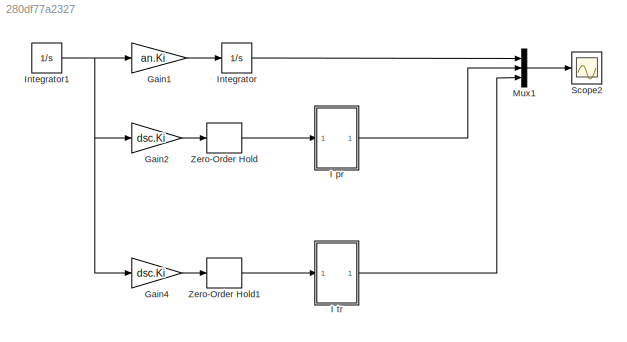
MODEL slx_280df77a2327
KIND model
CONFIG AbsTol = auto
CONFIG EnableMultiTasking = off
CONFIG FixedStep = To/100
CONFIG MaxStep = auto
CONFIG MinStep = auto
CONFIG RelTol = 1e-3
CONFIG SampleTimeConstraint = Unconstrained
CONFIG SolverName = FixedStepAuto
CONFIG StartTime = 0.0
CONFIG StopTime = Tmdl
BLOCK [Gain] Gain1
  Gain = an.Ki
BLOCK [Gain] Gain2
  Gain = dsc.Ki
BLOCK [Gain] Gain4
  Gain = dsc.Ki
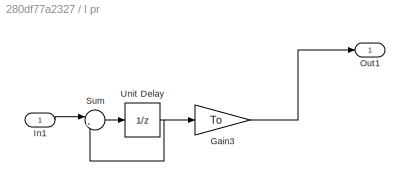
BLOCK [SubSystem] I pr
  Ports = [1, 1]
  RequestExecContextInheritance = off
BLOCK [Gain] I pr/Gain3
  Gain = To
BLOCK [Inport] I pr/In1
BLOCK [Outport] I pr/Out1
BLOCK [Sum] I pr/Sum
  Inputs = |++
  Ports = [2, 1]
BLOCK [UnitDelay] I pr/Unit Delay
  HasFrameUpgradeWarning = on
  SampleTime = -1
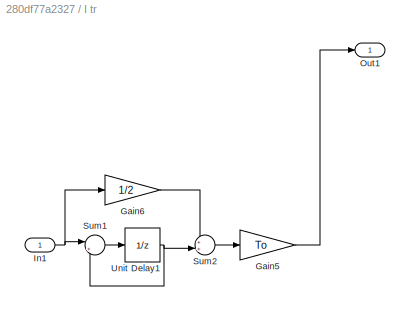
BLOCK [SubSystem] I tr
  Ports = [1, 1]
  RequestExecContextInheritance = off
BLOCK [Gain] I tr/Gain5
  Gain = To
BLOCK [Gain] I tr/Gain6
  Gain = 1/2
BLOCK [Inport] I tr/In1
BLOCK [Outport] I tr/Out1
BLOCK [Sum] I tr/Sum1
  Inputs = |++
  Ports = [2, 1]
BLOCK [Sum] I tr/Sum2
  Inputs = ++|
  Ports = [2, 1]
BLOCK [UnitDelay] I tr/Unit Delay1
  HasFrameUpgradeWarning = on
  SampleTime = -1
BLOCK [Integrator] Integrator
  Ports = [1, 1]
BLOCK [Integrator] Integrator1
  InitialCondition = 1
  Ports = [1, 1]
BLOCK [Mux] Mux1
  DisplayOption = bar
  Inputs = 3
  Ports = [3, 1]
BLOCK [Scope] Scope2
  Floating = off
  NumInputPorts = 1
  Ports = [1]
  ScopeSpecificationString = Simulink.scopes.TimeScopeBlockCfg('CurrentConfiguration', extmgr.ConfigurationSet(extmgr.Configuration('Core','General UI',true,'FigureColor',[1 1 1]),extmgr.Configuration('Core','Source UI',true),extmgr.Configuration('Sources','WiredSimulink',true,'DataLogging',true,'DataLoggingSaveFormat','Array','DataLoggingVariableName','y'),extmgr.Configuration('Visuals','Time Domain',true,'SerializedDisplays...<+1624ch>
BLOCK [ZeroOrderHold] Zero-Order Hold
  SampleTime = To
BLOCK [ZeroOrderHold] Zero-Order Hold1
  SampleTime = To
LINE Gain1:1 -> Integrator:1
LINE Gain2:1 -> Zero-Order Hold:1
LINE Gain4:1 -> Zero-Order Hold1:1
LINE I pr/Gain3:1 -> I pr/Out1:1
LINE I pr/In1:1 -> I pr/Sum:1
LINE I pr/Sum:1 -> I pr/Unit Delay:1
NET I pr/Unit Delay:1 -> I pr/Gain3:1, I pr/Sum:2
LINE I pr:1 -> Mux1:2
LINE I tr/Gain5:1 -> I tr/Out1:1
LINE I tr/Gain6:1 -> I tr/Sum2:1
NET I tr/In1:1 -> I tr/Gain6:1, I tr/Sum1:1
LINE I tr/Sum1:1 -> I tr/Unit Delay1:1
LINE I tr/Sum2:1 -> I tr/Gain5:1
NET I tr/Unit Delay1:1 -> I tr/Sum1:2, I tr/Sum2:2
LINE I tr:1 -> Mux1:3
NET Integrator1:1 -> Gain1:1, Gain2:1, Gain4:1
LINE Integrator:1 -> Mux1:1
LINE Mux1:1 -> Scope2:1
LINE Zero-Order Hold1:1 -> I tr:1
LINE Zero-Order Hold:1 -> I pr:1
note: NET lines group one-source signal fan-out (src -> all destinations, sorted); 1:1 wires keep LINE
